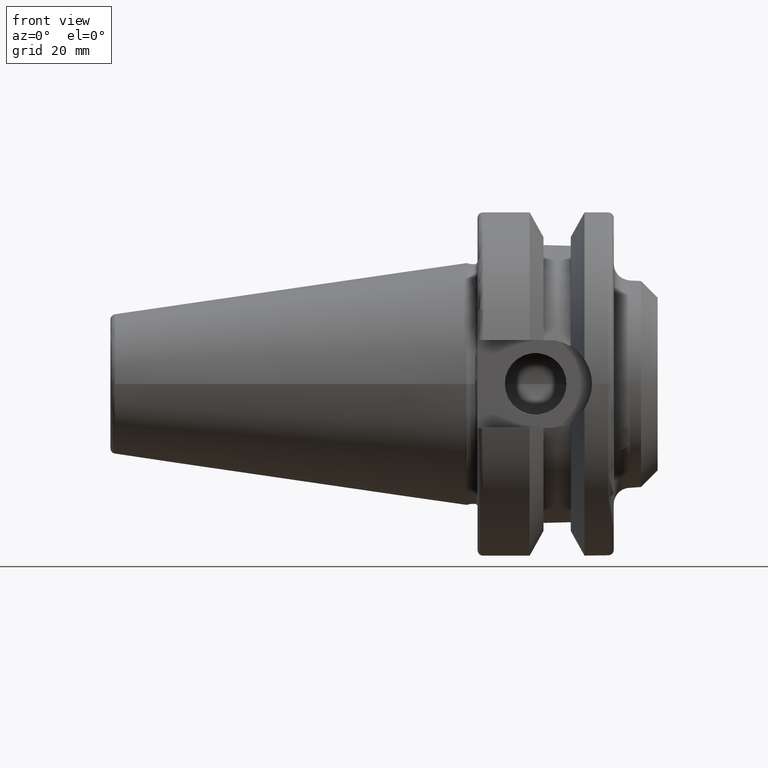
[diagram: clean part render]
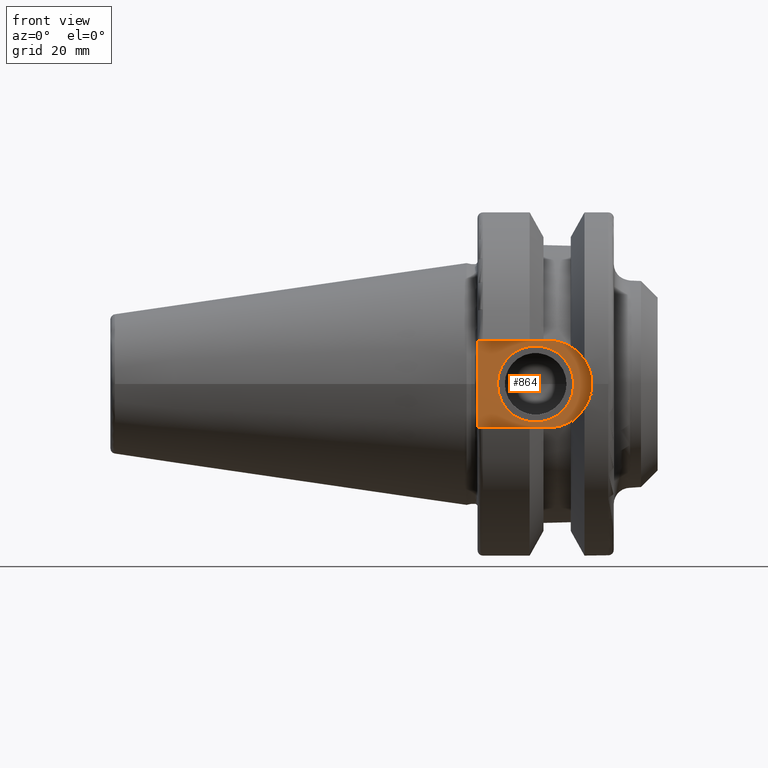
[diagram: same view with one face highlighted and labeled with its STEP entity id]
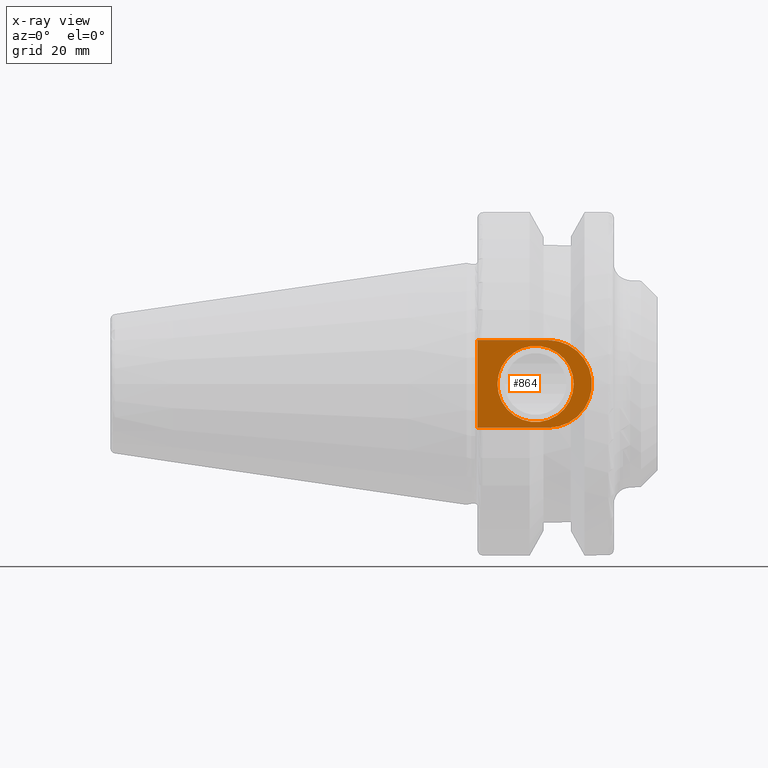
[diagram: x-ray of the same camera — body ghosted, the highlighted face saturated]
A machine part, front view. The second image highlights one B-rep face of the part: STEP entity #864.
The next image is the same camera in x-ray: the body ghosted, the highlighted face saturated — about 0% of this face is hidden behind the body in this view.
In plain terms, the highlighted planar face has unit normal (0, 1, 0).
Its self-contained STEP definition (entity closure, byte-faithful):
#60=FACE_BOUND('',#168,.T.);
#74=PLANE('',#965);
#106=FACE_OUTER_BOUND('',#167,.T.);
#167=EDGE_LOOP('',(#661,#662,#663,#664));
#168=EDGE_LOOP('',(#665));
#218=LINE('',#1449,#264);
#224=LINE('',#1505,#270);
#228=LINE('',#1527,#274);
#264=VECTOR('',#1134,10.);
#270=VECTOR('',#1146,10.);
#274=VECTOR('',#1152,10.);
#301=CIRCLE('',#928,7.);
#320=CIRCLE('',#963,8.05);
#362=VERTEX_POINT('',#1327);
#387=VERTEX_POINT('',#1446);
#388=VERTEX_POINT('',#1448);
#390=VERTEX_POINT('',#1459);
#399=VERTEX_POINT('',#1504);
#447=EDGE_CURVE('',#362,#362,#301,.T.);
#482=EDGE_CURVE('',#387,#388,#218,.T.);
#485=EDGE_CURVE('',#388,#390,#320,.T.);
#495=EDGE_CURVE('',#390,#399,#224,.T.);
#501=EDGE_CURVE('',#399,#387,#228,.T.);
#661=ORIENTED_EDGE('',*,*,#495,.F.);
#662=ORIENTED_EDGE('',*,*,#485,.F.);
#663=ORIENTED_EDGE('',*,*,#482,.F.);
#664=ORIENTED_EDGE('',*,*,#501,.F.);
#665=ORIENTED_EDGE('',*,*,#447,.T.);
#864=ADVANCED_FACE('',(#106,#60),#74,.F.);
#928=AXIS2_PLACEMENT_3D('',#1328,#1054,#1055);
#963=AXIS2_PLACEMENT_3D('',#1460,#1138,#1139);
#965=AXIS2_PLACEMENT_3D('',#1526,#1150,#1151);
#1054=DIRECTION('center_axis',(0.,1.,0.));
#1055=DIRECTION('ref_axis',(1.,0.,8.57315076930623E-17));
#1134=DIRECTION('',(1.,0.,8.57315076930623E-17));
#1138=DIRECTION('center_axis',(0.,1.,0.));
#1139=DIRECTION('ref_axis',(0.,0.,1.));
#1146=DIRECTION('',(-1.,0.,-8.57315076930623E-17));
#1150=DIRECTION('center_axis',(0.,1.,0.));
#1151=DIRECTION('ref_axis',(0.,0.,1.));
#1152=DIRECTION('',(0.,0.,1.));
#1327=CARTESIAN_POINT('',(5.65,-22.6,-1.45737331325458E-15));
#1328=CARTESIAN_POINT('Origin',(12.65,-22.6,0.));
#1446=CARTESIAN_POINT('',(1.99999999999999,-22.6,8.05));
#1448=CARTESIAN_POINT('',(14.95,-22.6,8.05));
#1449=CARTESIAN_POINT('',(1.99999999999999,-22.6,8.05));
#1459=CARTESIAN_POINT('',(14.95,-22.6,-8.05));
#1460=CARTESIAN_POINT('Origin',(14.95,-22.6,0.));
#1504=CARTESIAN_POINT('',(1.99999999999999,-22.6,-8.05));
#1505=CARTESIAN_POINT('',(14.95,-22.6,-8.05));
#1526=CARTESIAN_POINT('Origin',(12.5,-22.6,0.));
#1527=CARTESIAN_POINT('',(1.99999999999999,-22.6,0.));